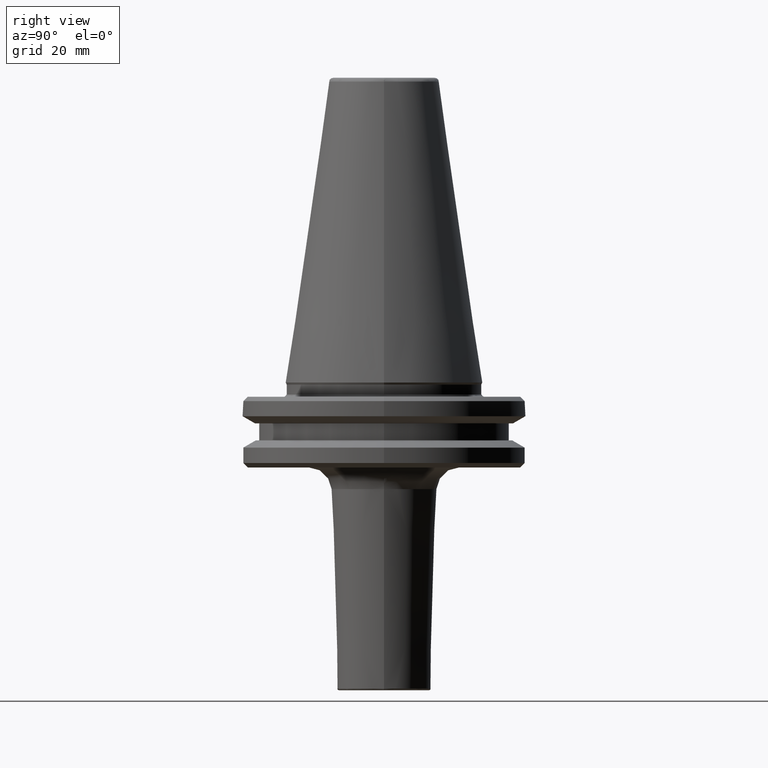
[diagram: clean part render]
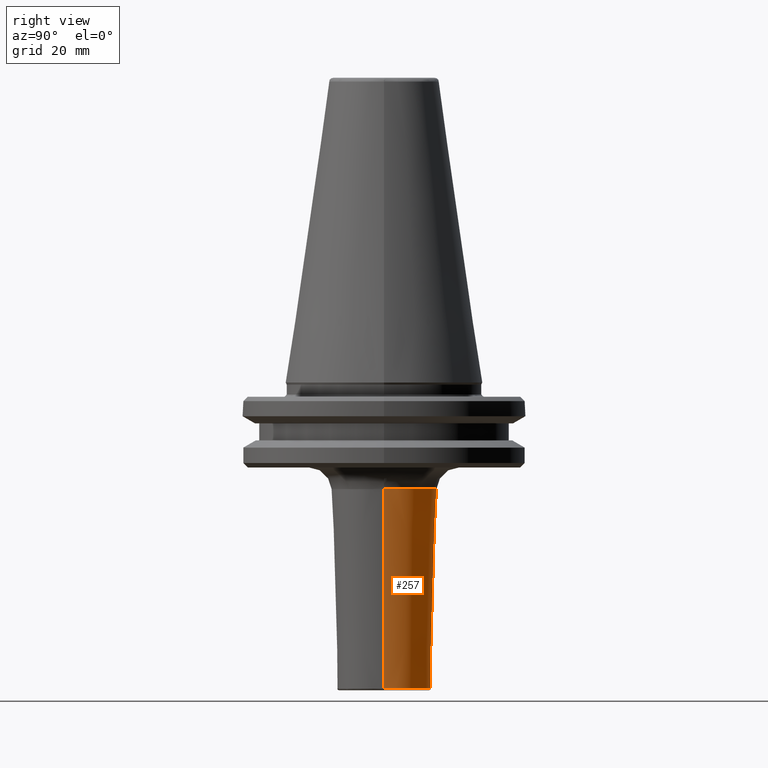
[diagram: same view with one face highlighted and labeled with its STEP entity id]
A machine part, right view. The second image highlights one B-rep face of the part: STEP entity #257.
In plain terms, the highlighted conical surface has half-angle 1.718 deg.
Its self-contained STEP definition (entity closure, byte-faithful):
#4 = CARTESIAN_POINT ( 'NONE',  ( -11.85449797636585200, 1.451757300225521800E-015, -23.95006745447164700 ) ) ;
#16 = DIRECTION ( 'NONE',  ( 1.000000000000000000, 0.0000000000000000000, -1.320230486782403100E-015 ) ) ;
#34 = DIRECTION ( 'NONE',  ( 0.0000000000000000000, 0.0000000000000000000, 1.000000000000000000 ) ) ;
#39 = CARTESIAN_POINT ( 'NONE',  ( 0.0000000000000000000, 0.0000000000000000000, -68.71199460364229600 ) ) ;
#202 = EDGE_CURVE ( 'NONE', #1079, #304, #769, .T. ) ;
#257 = ADVANCED_FACE ( 'NONE', ( #1292 ), #1175, .T. ) ;
#267 = EDGE_CURVE ( 'NONE', #489, #526, #1388, .T. ) ;
#304 = VERTEX_POINT ( 'NONE', #942 ) ;
#351 = CIRCLE ( 'NONE', #1137, 10.51164016189073000 ) ;
#396 = ORIENTED_EDGE ( 'NONE', *, *, #267, .F. ) ;
#432 = EDGE_CURVE ( 'NONE', #304, #526, #1017, .T. ) ;
#489 = VERTEX_POINT ( 'NONE', #576 ) ;
#526 = VERTEX_POINT ( 'NONE', #572 ) ;
#562 = ORIENTED_EDGE ( 'NONE', *, *, #432, .T. ) ;
#566 = VECTOR ( 'NONE', #866, 1000.000000000000100 ) ;
#572 = CARTESIAN_POINT ( 'NONE',  ( 11.85449797636585200, 0.0000000000000000000, -23.95006745447166100 ) ) ;
#576 = CARTESIAN_POINT ( 'NONE',  ( 10.51164016189073000, 0.0000000000000000000, -68.71199460364231000 ) ) ;
#767 = CARTESIAN_POINT ( 'NONE',  ( 0.0000000000000000000, 0.0000000000000000000, -23.95006745447164700 ) ) ;
#769 = LINE ( 'NONE', #4, #1212 ) ;
#866 = DIRECTION ( 'NONE',  ( 0.02998650910567104600, 0.0000000000000000000, 0.9995503035223666200 ) ) ;
#868 = DIRECTION ( 'NONE',  ( 1.000000000000000000, 0.0000000000000000000, 0.0000000000000000000 ) ) ;
#887 = ORIENTED_EDGE ( 'NONE', *, *, #202, .T. ) ;
#942 = CARTESIAN_POINT ( 'NONE',  ( -11.85449797636585200, 1.451757300225521800E-015, -23.95006745447166100 ) ) ;
#953 = DIRECTION ( 'NONE',  ( 1.000000000000000000, 0.0000000000000000000, 0.0000000000000000000 ) ) ;
#1017 = CIRCLE ( 'NONE', #1383, 11.85449797636585100 ) ;
#1068 = DIRECTION ( 'NONE',  ( 0.0000000000000000000, 0.0000000000000000000, 1.000000000000000000 ) ) ;
#1079 = VERTEX_POINT ( 'NONE', #1390 ) ;
#1106 = AXIS2_PLACEMENT_3D ( 'NONE', #767, #1068, #868 ) ;
#1137 = AXIS2_PLACEMENT_3D ( 'NONE', #39, #34, #16 ) ;
#1175 = CONICAL_SURFACE ( 'NONE', #1106, 11.85449797636585200, 0.02999100485687795200 ) ;
#1212 = VECTOR ( 'NONE', #1447, 1000.000000000000100 ) ;
#1226 = EDGE_LOOP ( 'NONE', ( #1399, #887, #562, #396 ) ) ;
#1263 = DIRECTION ( 'NONE',  ( -0.0000000000000000000, -0.0000000000000000000, -1.000000000000000000 ) ) ;
#1292 = FACE_OUTER_BOUND ( 'NONE', #1226, .T. ) ;
#1293 = CARTESIAN_POINT ( 'NONE',  ( 0.0000000000000000000, 0.0000000000000000000, -23.95006745447166100 ) ) ;
#1383 = AXIS2_PLACEMENT_3D ( 'NONE', #1293, #1263, #953 ) ;
#1388 = LINE ( 'NONE', #1500, #566 ) ;
#1390 = CARTESIAN_POINT ( 'NONE',  ( -10.51164016189073000, 1.369530974015173600E-015, -68.71199460364229600 ) ) ;
#1399 = ORIENTED_EDGE ( 'NONE', *, *, #1438, .T. ) ;
#1438 = EDGE_CURVE ( 'NONE', #489, #1079, #351, .T. ) ;
#1447 = DIRECTION ( 'NONE',  ( -0.02998650910567104600, 3.672288239386300300E-018, 0.9995503035223666200 ) ) ;
#1500 = CARTESIAN_POINT ( 'NONE',  ( 11.85449797636585200, 0.0000000000000000000, -23.95006745447164700 ) ) ;